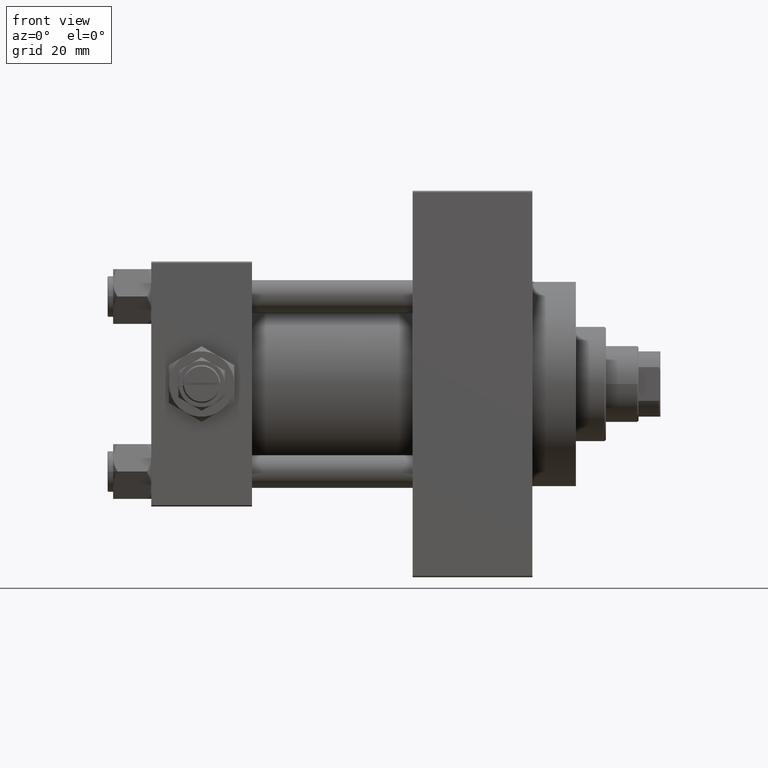
[diagram: clean part render]
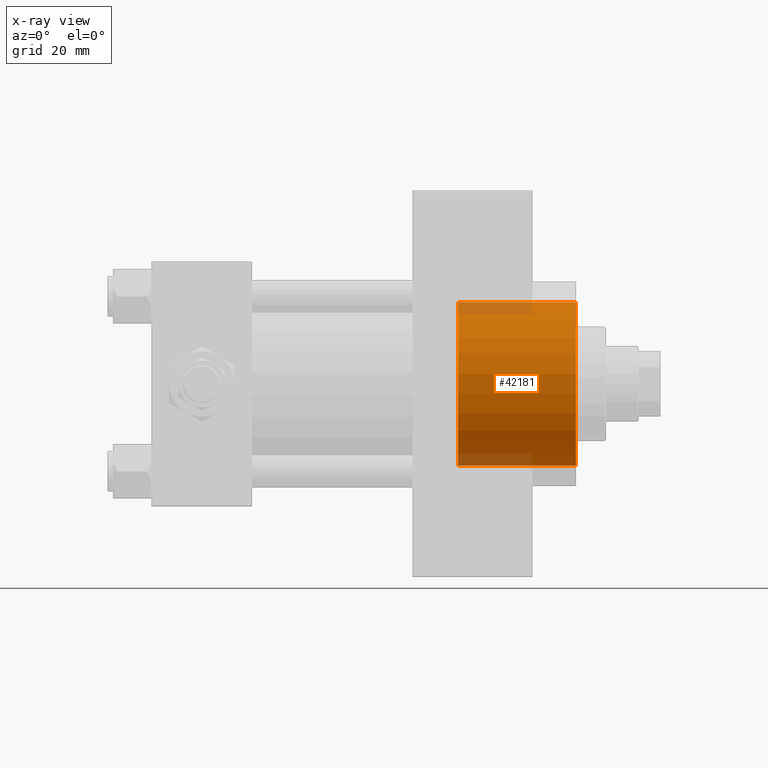
[diagram: x-ray — body ghosted, one internal face saturated and labeled with its STEP entity id]
A machine part, front view, then the same camera in x-ray: the body is ghosted and one INTERNAL B-rep face — a face not visible from any outside direction — is saturated and labeled: STEP entity #42181.
In plain terms, the highlighted cylindrical surface (partial cylindrical patch) has radius 30 mm, axis along (1, 0, 0).
Its self-contained STEP definition (entity closure, byte-faithful):
#413 = CARTESIAN_POINT ( 'NONE',  ( 112.7400000000000375, 0.000000000000000000, -30.00000000000000000 ) ) ;
#2716 = CIRCLE ( 'NONE', #29657, 30.00000000000000000 ) ;
#3641 = VERTEX_POINT ( 'NONE', #413 ) ;
#4710 = AXIS2_PLACEMENT_3D ( 'NONE', #9865, #6365, #21265 ) ;
#4963 = DIRECTION ( 'NONE',  ( 1.000000000000000000, -0.000000000000000000, -0.000000000000000000 ) ) ;
#5072 = VERTEX_POINT ( 'NONE', #26604 ) ;
#5352 = ORIENTED_EDGE ( 'NONE', *, *, #9232, .T. ) ;
#5878 = CYLINDRICAL_SURFACE ( 'NONE', #4710, 30.00000000000000000 ) ;
#5953 = CARTESIAN_POINT ( 'NONE',  ( 112.7400000000000375, 0.000000000000000000, 0.000000000000000000 ) ) ;
#6365 = DIRECTION ( 'NONE',  ( 1.000000000000000000, -0.000000000000000000, -0.000000000000000000 ) ) ;
#7159 = ORIENTED_EDGE ( 'NONE', *, *, #26141, .T. ) ;
#7350 = CIRCLE ( 'NONE', #30308, 30.00000000000000000 ) ;
#8941 = LINE ( 'NONE', #16390, #48557 ) ;
#9232 = EDGE_CURVE ( 'NONE', #39749, #13211, #15287, .T. ) ;
#9865 = CARTESIAN_POINT ( 'NONE',  ( 112.7400000000000375, 0.000000000000000000, 0.000000000000000000 ) ) ;
#13211 = VERTEX_POINT ( 'NONE', #28215 ) ;
#15147 = EDGE_CURVE ( 'NONE', #39749, #3641, #7350, .T. ) ;
#15287 = LINE ( 'NONE', #30859, #22295 ) ;
#16390 = CARTESIAN_POINT ( 'NONE',  ( 112.7400000000000375, 0.000000000000000000, -30.00000000000000000 ) ) ;
#17555 = FACE_OUTER_BOUND ( 'NONE', #34808, .T. ) ;
#17559 = CARTESIAN_POINT ( 'NONE',  ( 112.7400000000000375, 3.673940397442059178E-15, 30.00000000000000000 ) ) ;
#20322 = ORIENTED_EDGE ( 'NONE', *, *, #15147, .F. ) ;
#21265 = DIRECTION ( 'NONE',  ( 0.000000000000000000, 0.000000000000000000, -1.000000000000000000 ) ) ;
#22295 = VECTOR ( 'NONE', #35062, 1000.000000000000000 ) ;
#26141 = EDGE_CURVE ( 'NONE', #13211, #5072, #2716, .T. ) ;
#26604 = CARTESIAN_POINT ( 'NONE',  ( 156.0000000000000284, 0.000000000000000000, -30.00000000000000000 ) ) ;
#28215 = CARTESIAN_POINT ( 'NONE',  ( 156.0000000000000284, 3.673940397442059178E-15, 30.00000000000000000 ) ) ;
#29657 = AXIS2_PLACEMENT_3D ( 'NONE', #32196, #43346, #36155 ) ;
#30308 = AXIS2_PLACEMENT_3D ( 'NONE', #5953, #48090, #35692 ) ;
#30859 = CARTESIAN_POINT ( 'NONE',  ( 112.7400000000000375, 3.673940397442059178E-15, 30.00000000000000000 ) ) ;
#32196 = CARTESIAN_POINT ( 'NONE',  ( 156.0000000000000284, 0.000000000000000000, 0.000000000000000000 ) ) ;
#32325 = ORIENTED_EDGE ( 'NONE', *, *, #45668, .F. ) ;
#34808 = EDGE_LOOP ( 'NONE', ( #20322, #5352, #7159, #32325 ) ) ;
#35062 = DIRECTION ( 'NONE',  ( 1.000000000000000000, -0.000000000000000000, -0.000000000000000000 ) ) ;
#35692 = DIRECTION ( 'NONE',  ( 0.000000000000000000, 0.000000000000000000, -1.000000000000000000 ) ) ;
#36155 = DIRECTION ( 'NONE',  ( 0.000000000000000000, 0.000000000000000000, -1.000000000000000000 ) ) ;
#39749 = VERTEX_POINT ( 'NONE', #17559 ) ;
#42181 = ADVANCED_FACE ( 'NONE', ( #17555 ), #5878, .F. ) ;
#43346 = DIRECTION ( 'NONE',  ( 1.000000000000000000, 0.000000000000000000, 0.000000000000000000 ) ) ;
#45668 = EDGE_CURVE ( 'NONE', #3641, #5072, #8941, .T. ) ;
#48090 = DIRECTION ( 'NONE',  ( 1.000000000000000000, 0.000000000000000000, 0.000000000000000000 ) ) ;
#48557 = VECTOR ( 'NONE', #4963, 1000.000000000000000 ) ;